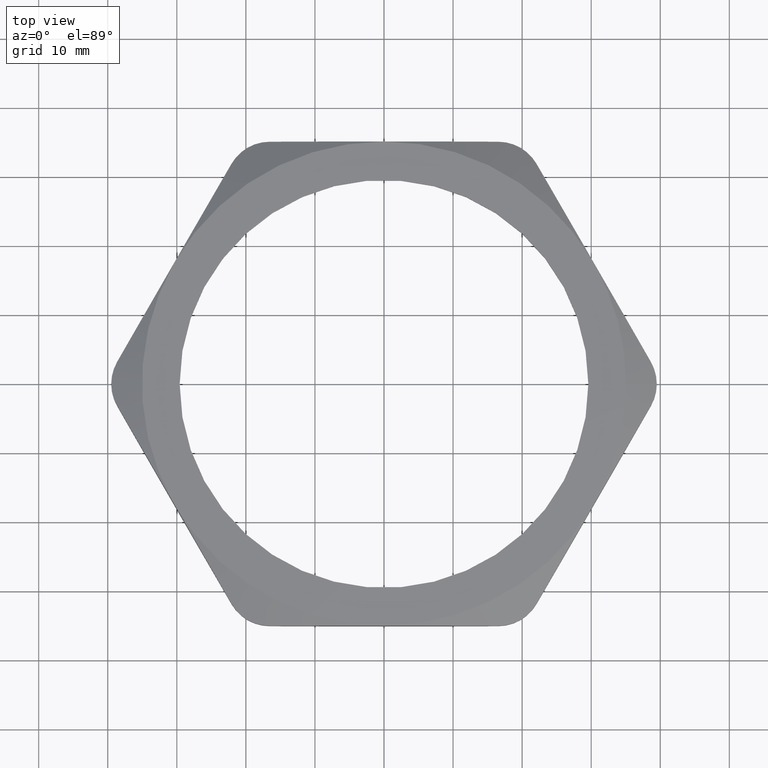
[diagram: clean part render]
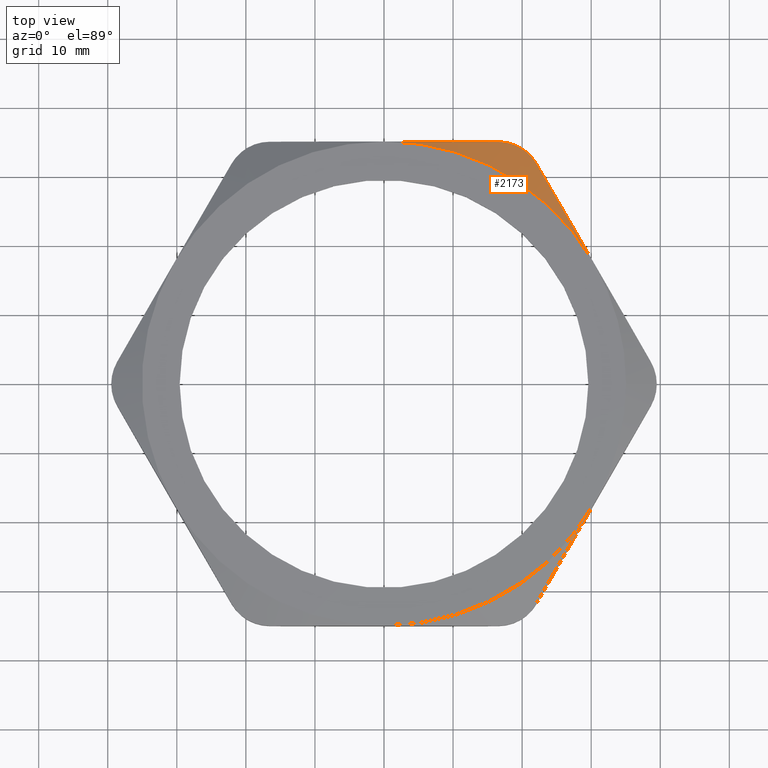
[diagram: same view with one face highlighted and labeled with its STEP entity id]
A machine part, top view. The second image highlights one B-rep face of the part: STEP entity #2173.
In plain terms, the highlighted conical surface has half-angle 60 deg.
Its self-contained STEP definition (entity closure, byte-faithful):
#290 = B_SPLINE_CURVE_WITH_KNOTS ( 'NONE', 3,
 ( #291, #350, #349, #348, #347, #346, #345, #344, #343, #342, #341, #340, #339, #338 ),
 .UNSPECIFIED., .F., .F.,
 ( 4, 2, 2, 2, 2, 2, 4 ),
 ( 0.0000000000000000000, 0.001670331507151321300, 0.002505497260726985800, 0.003340663014302650000, 0.004175828767878314200, 0.005010994521453979300, 0.006681326028605312100 ),
 .UNSPECIFIED. ) ;
#291 = CARTESIAN_POINT ( 'NONE',  ( 0.8689121551303876600, 1.254999999999999900, 0.2254501298317901400 ) ) ;
#292 = CONICAL_SURFACE ( 'NONE', #352, 1.380000000000000100, 1.047197551196600100 ) ;
#293 = FACE_OUTER_BOUND ( 'NONE', #2172, .T. ) ;
#336 = DIRECTION ( 'NONE',  ( 1.000000000000000000, 0.0000000000000000000, 0.0000000000000000000 ) ) ;
#337 = DIRECTION ( 'NONE',  ( 0.0000000000000000000, 0.0000000000000000000, -1.000000000000000000 ) ) ;
#338 = CARTESIAN_POINT ( 'NONE',  ( 0.6524058041842775200, 1.380000000000000100, 0.2254501298317901900 ) ) ;
#339 = CARTESIAN_POINT ( 'NONE',  ( 0.6739838505943421800, 1.380000000000001400, 0.2201255144235941000 ) ) ;
#340 = CARTESIAN_POINT ( 'NONE',  ( 0.6958164122272638700, 1.377161594292438900, 0.2159976292594443800 ) ) ;
#341 = CARTESIAN_POINT ( 'NONE',  ( 0.7273483264900713100, 1.368750815697886300, 0.2118687559801424900 ) ) ;
#342 = CARTESIAN_POINT ( 'NONE',  ( 0.7377039281079999000, 1.365257069693205800, 0.2108241464086656200 ) ) ;
#343 = CARTESIAN_POINT ( 'NONE',  ( 0.7580910746160590700, 1.356830955557882800, 0.2094191749496266100 ) ) ;
#344 = CARTESIAN_POINT ( 'NONE',  ( 0.7680824436321467300, 1.351899455791086800, 0.2090681656589827000 ) ) ;
#345 = CARTESIAN_POINT ( 'NONE',  ( 0.7870829444170234200, 1.340908798519792100, 0.2090768569373936700 ) ) ;
#346 = CARTESIAN_POINT ( 'NONE',  ( 0.7961768472429607800, 1.334817198311787600, 0.2094296390777394300 ) ) ;
#347 = CARTESIAN_POINT ( 'NONE',  ( 0.8135544857093408600, 1.321445292418501800, 0.2108323193192810100 ) ) ;
#348 = CARTESIAN_POINT ( 'NONE',  ( 0.8218996081851636100, 1.314096858460043200, 0.2118959863804332200 ) ) ;
#349 = CARTESIAN_POINT ( 'NONE',  ( 0.8450608079579745600, 1.290820586614858800, 0.2160714172718382600 ) ) ;
#350 = CARTESIAN_POINT ( 'NONE',  ( 0.8581259405755247100, 1.273682271630361100, 0.2201269005529671300 ) ) ;
#351 = CARTESIAN_POINT ( 'NONE',  ( 0.0000000000000000000, 0.0000000000000000000, 0.3100000000000000000 ) ) ;
#352 = AXIS2_PLACEMENT_3D ( 'NONE', #351, #337, #336 ) ;
#481 = CARTESIAN_POINT ( 'NONE',  ( 1.195115057222526400, 0.6900000000000001700, 0.3100000000000000000 ) ) ;
#1161 = CARTESIAN_POINT ( 'NONE',  ( 0.8689121551303876600, 1.254999999999999900, 0.2254501298317901400 ) ) ;
#1206 = CARTESIAN_POINT ( 'NONE',  ( 0.8689121551303876600, 1.254999999999999900, 0.2254501298317901400 ) ) ;
#1207 = CARTESIAN_POINT ( 'NONE',  ( 0.9222822964244292700, 1.162560203671590300, 0.2517894444547577600 ) ) ;
#1208 = CARTESIAN_POINT ( 'NONE',  ( 0.9760731780192173400, 1.069391663765495400, 0.2730486519548999700 ) ) ;
#1209 = CARTESIAN_POINT ( 'NONE',  ( 1.057590622839086600, 0.9281993076342898200, 0.2949023157344895000 ) ) ;
#1210 = CARTESIAN_POINT ( 'NONE',  ( 1.084901594054454900, 0.8808953178852205700, 0.3005147175850674300 ) ) ;
#1211 = CARTESIAN_POINT ( 'NONE',  ( 1.126096183324480200, 0.8095441962726046500, 0.3061788010844167000 ) ) ;
#1212 = CARTESIAN_POINT ( 'NONE',  ( 1.139865678699428100, 0.7856947306886102900, 0.3076084240357870300 ) ) ;
#1213 = CARTESIAN_POINT ( 'NONE',  ( 1.167483135742158000, 0.7378598919147514300, 0.3095202513707779300 ) ) ;
#1214 = CARTESIAN_POINT ( 'NONE',  ( 1.181328527765492600, 0.7138789694796275900, 0.3099999999999997200 ) ) ;
#1215 = CARTESIAN_POINT ( 'NONE',  ( 1.195115057222526400, 0.6900000000000001700, 0.3100000000000000000 ) ) ;
#1218 = B_SPLINE_CURVE_WITH_KNOTS ( 'NONE', 3,
 ( #1215, #1214, #1213, #1212, #1211, #1210, #1209, #1208, #1207, #1206 ),
 .UNSPECIFIED., .F., .F.,
 ( 4, 2, 2, 2, 4 ),
 ( 0.02047705138538593800, 0.02255677289532727000, 0.02463649440526859800, 0.02879593742515127600, 0.03711482346491663800 ),
 .UNSPECIFIED. ) ;
#1442 = CARTESIAN_POINT ( 'NONE',  ( 0.0000000000000000000, 1.380000000000000100, 0.3100000000000000000 ) ) ;
#1443 = CARTESIAN_POINT ( 'NONE',  ( 0.05488473359949094800, 1.380000000000000100, 0.3100000000000000000 ) ) ;
#1444 = CARTESIAN_POINT ( 'NONE',  ( 0.1099260653722569900, 1.380000000000000600, 0.3081028583873256000 ) ) ;
#1445 = CARTESIAN_POINT ( 'NONE',  ( 0.1927219548987233200, 1.379999999999999700, 0.3024236135900343900 ) ) ;
#1446 = CARTESIAN_POINT ( 'NONE',  ( 0.2203836414873076300, 1.380000000000000300, 0.3000553659679006700 ) ) ;
#1447 = CARTESIAN_POINT ( 'NONE',  ( 0.2753731976035291300, 1.380000000000000100, 0.2944425111180288300 ) ) ;
#1448 = CARTESIAN_POINT ( 'NONE',  ( 0.3027508877483348100, 1.380000000000000600, 0.2911955382629182200 ) ) ;
#1449 = CARTESIAN_POINT ( 'NONE',  ( 0.4390883824317436400, 1.380000000000000100, 0.2728876917377685600 ) ) ;
#1450 = CARTESIAN_POINT ( 'NONE',  ( 0.5463956899380892900, 1.380000000000000100, 0.2516092675504198500 ) ) ;
#1451 = CARTESIAN_POINT ( 'NONE',  ( 0.6524058041842775200, 1.380000000000000100, 0.2254501298317901900 ) ) ;
#1454 = CARTESIAN_POINT ( 'NONE',  ( 0.6524058041842775200, 1.380000000000000100, 0.2254501298317901900 ) ) ;
#1455 = B_SPLINE_CURVE_WITH_KNOTS ( 'NONE', 3,
 ( #1451, #1450, #1449, #1448, #1447, #1446, #1445, #1444, #1443, #1442 ),
 .UNSPECIFIED., .F., .F.,
 ( 4, 2, 2, 2, 4 ),
 ( 0.09478620208829304000, 0.1031357163968200500, 0.1052230949739518100, 0.1073104735510835600, 0.1114852307053470600 ),
 .UNSPECIFIED. ) ;
#1465 = CARTESIAN_POINT ( 'NONE',  ( 0.0000000000000000000, 1.380000000000000100, 0.3100000000000000000 ) ) ;
#1639 = DIRECTION ( 'NONE',  ( 1.000000000000000000, 0.0000000000000000000, 0.0000000000000000000 ) ) ;
#1640 = DIRECTION ( 'NONE',  ( 0.0000000000000000000, 0.0000000000000000000, 1.000000000000000000 ) ) ;
#1641 = CARTESIAN_POINT ( 'NONE',  ( 0.0000000000000000000, 0.0000000000000000000, 0.3100000000000000000 ) ) ;
#1642 = AXIS2_PLACEMENT_3D ( 'NONE', #1641, #1640, #1639 ) ;
#1643 = CIRCLE ( 'NONE', #1642, 1.380000000000000100 ) ;
#2165 = EDGE_CURVE ( 'NONE', #2624, #2792, #290, .T. ) ;
#2166 = ORIENTED_EDGE ( 'NONE', *, *, #2791, .T. ) ;
#2167 = ORIENTED_EDGE ( 'NONE', *, *, #2866, .F. ) ;
#2169 = ORIENTED_EDGE ( 'NONE', *, *, #2165, .T. ) ;
#2170 = ORIENTED_EDGE ( 'NONE', *, *, #2626, .T. ) ;
#2172 = EDGE_LOOP ( 'NONE', ( #2170, #2169, #2166, #2167 ) ) ;
#2173 = ADVANCED_FACE ( 'NONE', ( #293 ), #292, .T. ) ;
#2269 = VERTEX_POINT ( 'NONE', #481 ) ;
#2624 = VERTEX_POINT ( 'NONE', #1161 ) ;
#2626 = EDGE_CURVE ( 'NONE', #2269, #2624, #1218, .T. ) ;
#2789 = VERTEX_POINT ( 'NONE', #1465 ) ;
#2791 = EDGE_CURVE ( 'NONE', #2792, #2789, #1455, .T. ) ;
#2792 = VERTEX_POINT ( 'NONE', #1454 ) ;
#2866 = EDGE_CURVE ( 'NONE', #2269, #2789, #1643, .T. ) ;